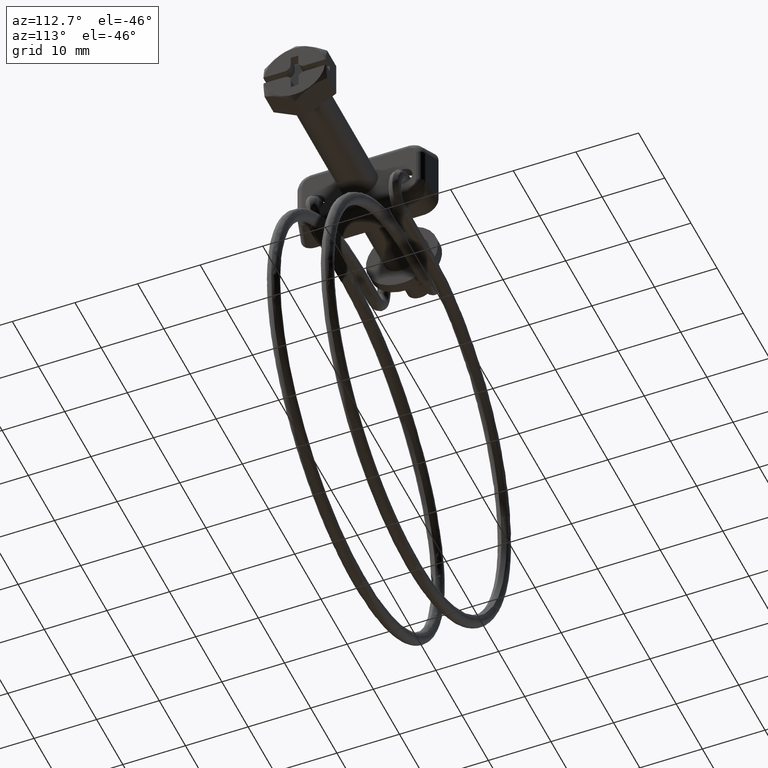
[diagram: clean part render]
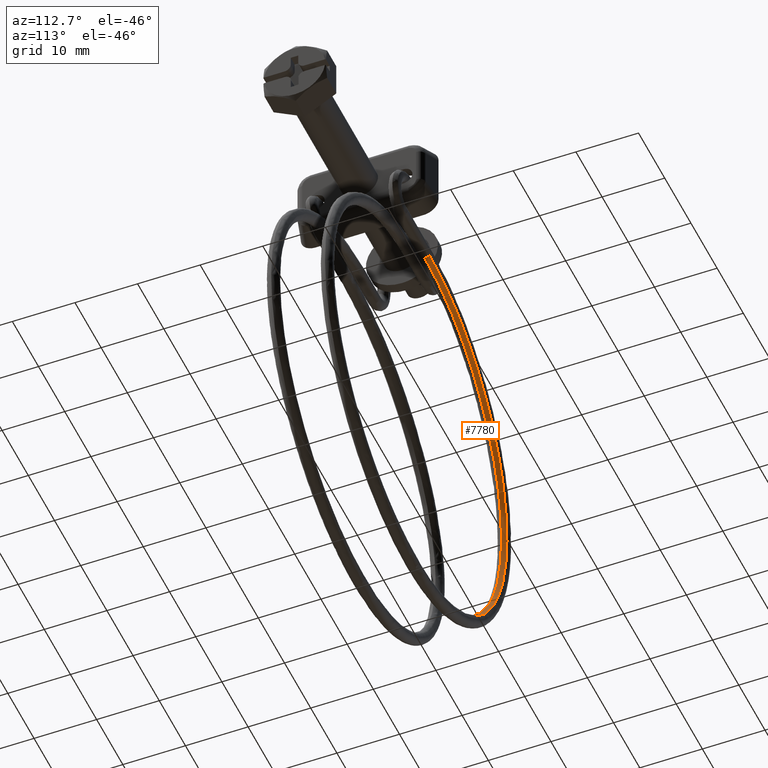
[diagram: same view with one face highlighted and labeled with its STEP entity id]
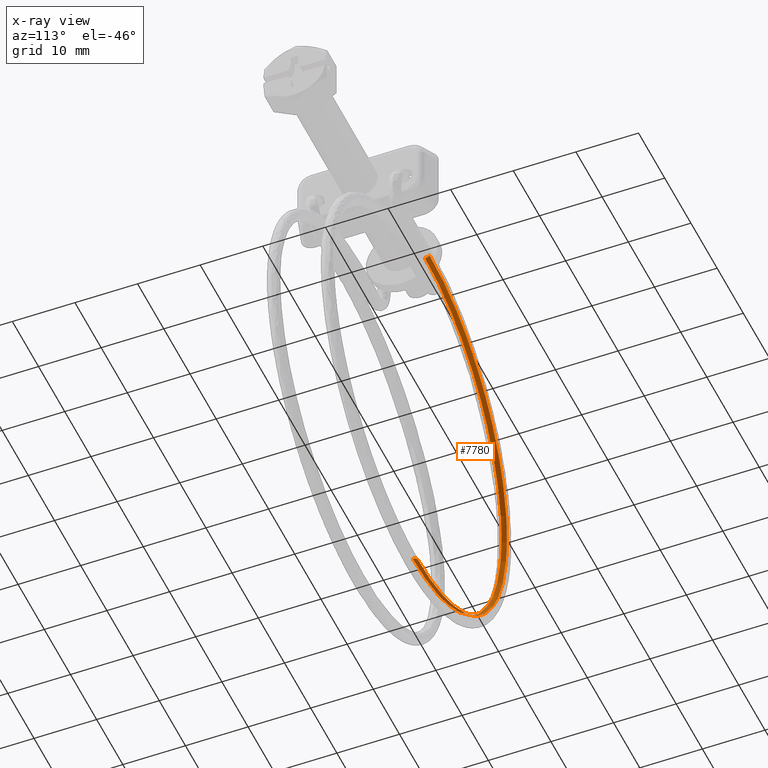
[diagram: x-ray of the same camera — body ghosted, the highlighted face saturated]
A machine part, auxiliary view. The second image highlights one B-rep face of the part: STEP entity #7780.
The next image is the same camera in x-ray: the body ghosted, the highlighted face saturated — about 0% of this face is hidden behind the body in this view.
In plain terms, the highlighted face is a freeform B-spline surface patch.
Its self-contained STEP definition (entity closure, byte-faithful):
#5741=CARTESIAN_POINT('',(-30.850000000000950,6.248214835620130,-8.848090353716110));
#5742=VERTEX_POINT('',#5741);
#5750=CARTESIAN_POINT('',(-30.850000000000950,6.995262014231693,-8.578269013316785));
#5751=VERTEX_POINT('',#5750);
#5752=CARTESIAN_POINT('',(-30.850000000000950,6.248214835620129,-8.848090353716090));
#5753=CARTESIAN_POINT('',(-30.850000000000950,6.509514017391851,-8.864266170772375));
#5754=CARTESIAN_POINT('',(-30.850000000000961,6.775863146346416,-8.772775199729132));
#5755=CARTESIAN_POINT('',(-30.850000000000961,6.979916057676521,-8.592513423293484));
#5756=CARTESIAN_POINT('',(-30.850000000000961,6.987648409741322,-8.585452506749903));
#5757=CARTESIAN_POINT('',(-30.850000000000950,6.995262014231693,-8.578269013316785));
#5758=B_SPLINE_CURVE_WITH_KNOTS('',3,(#5752,#5753,#5754,#5755,#5756,#5757),.UNSPECIFIED.,.F.,.U.,(4,2,4),(0.0,0.125000000000000,0.130000178333013),.UNSPECIFIED.);
#5759=EDGE_CURVE('',#5742,#5751,#5758,.T.);
#6630=CARTESIAN_POINT('',(-30.849999999999049,5.028950365697011,-72.165464663451871));
#6631=VERTEX_POINT('',#6630);
#6643=CARTESIAN_POINT('',(-30.849999999999049,4.300002000002957,-71.850001000000091));
#6644=VERTEX_POINT('',#6643);
#6645=CARTESIAN_POINT('',(-30.849999999999049,4.300002000002957,-71.850001000000091));
#6646=CARTESIAN_POINT('',(-30.849999999999049,4.561801387802110,-71.850001000000091));
#6647=CARTESIAN_POINT('',(-30.849999999999049,4.821988658766241,-71.957774096390295));
#6648=CARTESIAN_POINT('',(-30.849999999999049,5.014513850190690,-72.150299287814732));
#6649=CARTESIAN_POINT('',(-30.849999999999049,5.021795155122207,-72.157824472821375));
#6650=CARTESIAN_POINT('',(-30.849999999999049,5.028950365697011,-72.165464663451871));
#6651=B_SPLINE_CURVE_WITH_KNOTS('',3,(#6645,#6646,#6647,#6648,#6649,#6650),.UNSPECIFIED.,.F.,.U.,(4,2,4),(0.0,0.125000000000000,0.130000178333027),.UNSPECIFIED.);
#6652=EDGE_CURVE('',#6644,#6631,#6651,.T.);
#7672=CARTESIAN_POINT('',(-30.850000000000950,6.248214835620130,-8.848090353716129));
#7673=CARTESIAN_POINT('',(-34.974403302579802,6.248347129985035,-8.848121584237486));
#7674=CARTESIAN_POINT('',(-39.095682023862750,6.222857743005711,-9.668097906342709));
#7675=CARTESIAN_POINT('',(-46.714842406470012,6.125259055369910,-12.824274420947649));
#7676=CARTESIAN_POINT('',(-50.209058448575497,6.053055922398230,-15.159201642257820));
#7677=CARTESIAN_POINT('',(-56.040244098352147,5.872727705433809,-20.990711236110378));
#7678=CARTESIAN_POINT('',(-58.374922680064550,5.764673476109894,-24.485002287764448));
#7679=CARTESIAN_POINT('',(-61.530660018496199,5.529070618977755,-32.104000272407227));
#7680=CARTESIAN_POINT('',(-62.350477775705812,5.401614601137180,-36.225712355549682));
#7681=CARTESIAN_POINT('',(-62.350477775705812,5.146602298112000,-44.472378998168622));
#7682=CARTESIAN_POINT('',(-61.530660018584001,5.019146280270505,-48.594091081273902));
#7683=CARTESIAN_POINT('',(-58.374922679975199,4.783543423140210,-56.213089065990502));
#7684=CARTESIAN_POINT('',(-56.040244098385713,4.675489193818786,-59.707380117587050));
#7685=CARTESIAN_POINT('',(-50.209058448539153,4.495160976847577,-65.538889711479953));
#7686=CARTESIAN_POINT('',(-46.714842406453350,4.422957843880228,-67.873816932769358));
#7687=CARTESIAN_POINT('',(-39.095682023875597,4.325359156242580,-71.029993447374295));
#7688=CARTESIAN_POINT('',(-34.974403331958513,4.300002987348948,-71.850000999984303));
#7689=CARTESIAN_POINT('',(-30.849999999999049,4.300002000002957,-71.850001000000091));
#7690=B_SPLINE_CURVE_WITH_KNOTS('',3,(#7672,#7673,#7674,#7675,#7676,#7677,#7678,#7679,#7680,#7681,#7682,#7683,#7684,#7685,#7686,#7687,#7688,#7689),.UNSPECIFIED.,.F.,.U.,(4,2,2,2,2,2,2,2,4),(0.049071881011515,0.074674945017867,0.100278009024219,0.125881073030571,0.151484137036923,0.177087201043274,0.202690265049626,0.228293329055978,0.253896393062329),.UNSPECIFIED.);
#7691=EDGE_CURVE('',#5742,#6644,#7690,.T.);
#7697=CARTESIAN_POINT('',(-30.850000000000950,6.995262014231693,-8.578269013316785));
#7698=CARTESIAN_POINT('',(-35.012756769872908,6.995394513036921,-8.578301066998980));
#7699=CARTESIAN_POINT('',(-39.172359100156953,6.969668692687637,-9.405903021929548));
#7700=CARTESIAN_POINT('',(-46.862355533055563,6.871162620876794,-12.591422806200541));
#7701=CARTESIAN_POINT('',(-50.389049424399630,6.798288306376652,-14.948054903267350));
#7702=CARTESIAN_POINT('',(-56.274419805685078,6.616284437729290,-20.833752238823202));
#7703=CARTESIAN_POINT('',(-58.630784576598579,6.507226414977228,-24.360504272521140));
#7704=CARTESIAN_POINT('',(-61.815830431606422,6.269435425721092,-32.050262749871330));
#7705=CARTESIAN_POINT('',(-62.643259765213287,6.140795919325749,-36.210246851532780));
#7706=CARTESIAN_POINT('',(-62.643259765213287,5.883415734084295,-44.533486800804319));
#7707=CARTESIAN_POINT('',(-61.815830431681078,5.754776227688970,-48.693470902417943));
#7708=CARTESIAN_POINT('',(-58.630784576522409,5.516985238432816,-56.383229379863273));
#7709=CARTESIAN_POINT('',(-56.274419805717002,5.407927215683054,-59.909981413508511));
#7710=CARTESIAN_POINT('',(-50.389049424365012,5.225923347031135,-65.795678749073701));
#7711=CARTESIAN_POINT('',(-46.862355533045402,5.153049032532671,-68.152310846118993));
#7712=CARTESIAN_POINT('',(-39.172359100163362,5.054542960723066,-71.337830630422644));
#7713=CARTESIAN_POINT('',(-35.012756799670619,5.028950979003680,-72.165464277380394));
#7714=CARTESIAN_POINT('',(-30.849999999999049,5.028950365697011,-72.165464663451871));
#7715=B_SPLINE_CURVE_WITH_KNOTS('',3,(#7697,#7698,#7699,#7700,#7701,#7702,#7703,#7704,#7705,#7706,#7707,#7708,#7709,#7710,#7711,#7712,#7713,#7714),.UNSPECIFIED.,.F.,.U.,(4,2,2,2,2,2,2,2,4),(0.049071881011515,0.074674945017867,0.100278009024219,0.125881073030571,0.151484137036923,0.177087201043274,0.202690265049626,0.228293329055978,0.253896393062329),.UNSPECIFIED.);
#7716=EDGE_CURVE('',#5751,#6631,#7715,.T.);
#7721=CARTESIAN_POINT('',(-30.355069630440951,6.244122690324415,-8.847834263117456));
#7722=CARTESIAN_POINT('',(-30.355221616662600,6.518534671727807,-8.865993129351201));
#7723=CARTESIAN_POINT('',(-30.353502000369168,6.798949637457198,-8.765218985649897));
#7724=CARTESIAN_POINT('',(-30.350423730669291,6.998215428739772,-8.575463601633919));
#7725=CARTESIAN_POINT('',(-30.520044020605820,6.244108304578592,-8.848465232737951));
#7726=CARTESIAN_POINT('',(-30.520145345510851,6.518520291180855,-8.866623905004342));
#7727=CARTESIAN_POINT('',(-30.518998926080709,6.798935198079036,-8.765851955904065));
#7728=CARTESIAN_POINT('',(-30.516946730943559,6.998200883924609,-8.576100500452416));
#7729=CARTESIAN_POINT('',(-34.809202398563997,6.245273717474091,-8.815041058924971));
#7730=CARTESIAN_POINT('',(-34.807986584765182,6.519685366171537,-8.833209993717794));
#7731=CARTESIAN_POINT('',(-34.821742655533107,6.800104095962015,-8.732321931372791));
#7732=CARTESIAN_POINT('',(-34.846367274415321,6.999376621942072,-8.542362623355590));
#7733=CARTESIAN_POINT('',(-43.218824587715673,6.193371526975161,-10.488079588868681));
#7734=CARTESIAN_POINT('',(-43.215026331306603,6.467799090614311,-10.505734702340151));
#7735=CARTESIAN_POINT('',(-43.258000908493713,6.748037754468225,-10.410660163850929));
#7736=CARTESIAN_POINT('',(-43.334929313594927,6.946987950072641,-10.231107591857260));
#7737=CARTESIAN_POINT('',(-53.704670852667938,5.976750809581422,-17.495004068262670));
#7738=CARTESIAN_POINT('',(-53.697654071242717,6.251244879145739,-17.510508215330798));
#7739=CARTESIAN_POINT('',(-53.777043976134138,6.530731075502406,-17.439770336019599));
#7740=CARTESIAN_POINT('',(-53.919159132706667,6.728334284450069,-17.303782599572759));
#7741=CARTESIAN_POINT('',(-60.710791519812950,5.652499579922652,-27.980444379790850));
#7742=CARTESIAN_POINT('',(-60.701625698716533,5.927093120456253,-27.992731850167999));
#7743=CARTESIAN_POINT('',(-60.805330463214133,6.205453873379417,-27.958388386076329));
#7744=CARTESIAN_POINT('',(-60.990971431872786,6.401042436362891,-27.887549965813928));
#7745=CARTESIAN_POINT('',(-63.170488341455489,5.270028157268191,-40.348923412079273));
#7746=CARTESIAN_POINT('',(-63.160568387113173,5.544738975668687,-40.357418314556071));
#7747=CARTESIAN_POINT('',(-63.272805634428281,5.821772812711236,-40.365985066226230));
#7748=CARTESIAN_POINT('',(-63.473720524019583,6.014986075476629,-40.371959838255258));
#7749=CARTESIAN_POINT('',(-60.710799634563550,4.887556372196220,-52.717414164352597));
#7750=CARTESIAN_POINT('',(-60.701633811418951,5.162384468570354,-52.722116495443153));
#7751=CARTESIAN_POINT('',(-60.805338599041917,5.438091388514358,-52.773593502279361));
#7752=CARTESIAN_POINT('',(-60.990979609053632,5.628929348880415,-52.856381537136294));
#7753=CARTESIAN_POINT('',(-53.704669287548910,4.563315022029729,-63.202833317280337));
#7754=CARTESIAN_POINT('',(-53.697652506517763,4.838242587730504,-63.204318978201989));
#7755=CARTESIAN_POINT('',(-53.777042406948958,5.112824082688806,-63.292190333734389));
#7756=CARTESIAN_POINT('',(-53.919157555556559,5.301647429896953,-63.440127565115120));
#7757=CARTESIAN_POINT('',(-43.218825110089902,4.346639195489929,-70.209749968212336));
#7758=CARTESIAN_POINT('',(-43.215026853555102,4.621633275731076,-70.209084663664399));
#7759=CARTESIAN_POINT('',(-43.258001432198512,4.895462206526832,-70.321292624334205));
#7760=CARTESIAN_POINT('',(-43.334929839925763,5.082938395322156,-70.512794598078742));
#7761=CARTESIAN_POINT('',(-34.809202317949357,4.294903771789490,-71.882826042251324));
#7762=CARTESIAN_POINT('',(-34.807986504171652,4.569913740967330,-71.881646909457160));
#7763=CARTESIAN_POINT('',(-34.821742574780053,4.843562897649185,-71.999668604308511));
#7764=CARTESIAN_POINT('',(-34.846367193355697,5.030717274590895,-72.201577679771546));
#7765=CARTESIAN_POINT('',(-30.520044018208122,4.295937320713819,-71.849371231649286));
#7766=CARTESIAN_POINT('',(-30.520145343113558,4.570946972533136,-71.848202367137986));
#7767=CARTESIAN_POINT('',(-30.518998923669809,4.844599721531330,-71.966107779265982));
#7768=CARTESIAN_POINT('',(-30.516946728511371,5.031760528906259,-72.167808707324312));
#7769=CARTESIAN_POINT('',(-30.355069626913011,4.295917808361098,-71.850001000017272));
#7770=CARTESIAN_POINT('',(-30.355221613135281,4.570927466178012,-71.848831941765397));
#7771=CARTESIAN_POINT('',(-30.353501996821841,4.844580147380999,-71.966739541871092));
#7772=CARTESIAN_POINT('',(-30.350423727090622,5.031740833390847,-72.168444386969753));
#7773=B_SPLINE_SURFACE_WITH_KNOTS('',3,3,((#7721,#7725,#7729,#7733,#7737,#7741,#7745,#7749,#7753,#7757,#7761,#7765,#7769),(#7722,#7726,#7730,#7734,#7738,#7742,#7746,#7750,#7754,#7758,#7762,#7766,#7770),(#7723,#7727,#7731,#7735,#7739,#7743,#7747,#7751,#7755,#7759,#7763,#7767,#7771),(#7724,#7728,#7732,#7736,#7740,#7744,#7748,#7752,#7756,#7760,#7764,#7768,#7772)),.UNSPECIFIED.,.F.,.F.,.U.,(4,4),(4,1,1,1,1,1,1,1,1,1,4),(0.0,0.825536785380524),(0.0,0.499615324328814,12.989998711729260,25.480382099129709,37.970765486530162,50.461148873930647,62.951532261330946,75.441915648731495,87.932299036132022,100.422682423532290,100.922297747861510),.UNSPECIFIED.);
#7774=ORIENTED_EDGE('',*,*,#6652,.T.);
#7775=ORIENTED_EDGE('',*,*,#7716,.F.);
#7776=ORIENTED_EDGE('',*,*,#5759,.F.);
#7777=ORIENTED_EDGE('',*,*,#7691,.T.);
#7778=EDGE_LOOP('',(#7774,#7775,#7776,#7777));
#7779=FACE_OUTER_BOUND('',#7778,.T.);
#7780=ADVANCED_FACE('',(#7779),#7773,.F.);